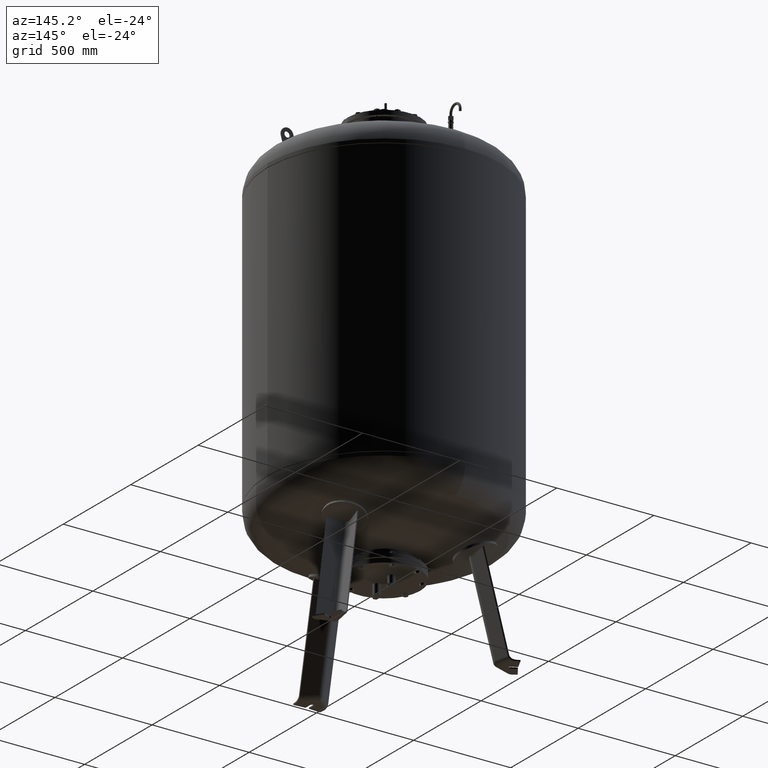
[diagram: clean part render]
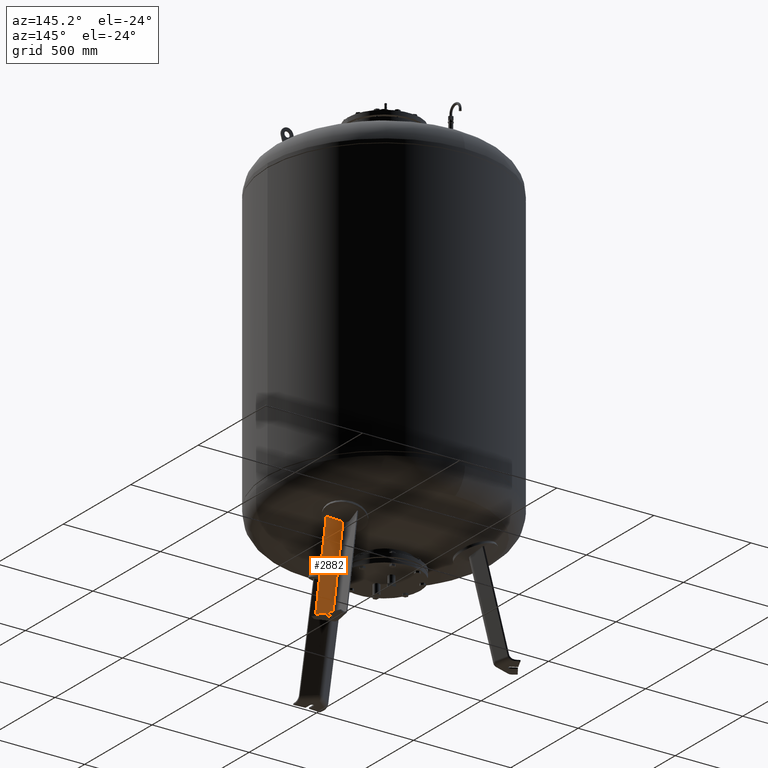
[diagram: same view with one face highlighted and labeled with its STEP entity id]
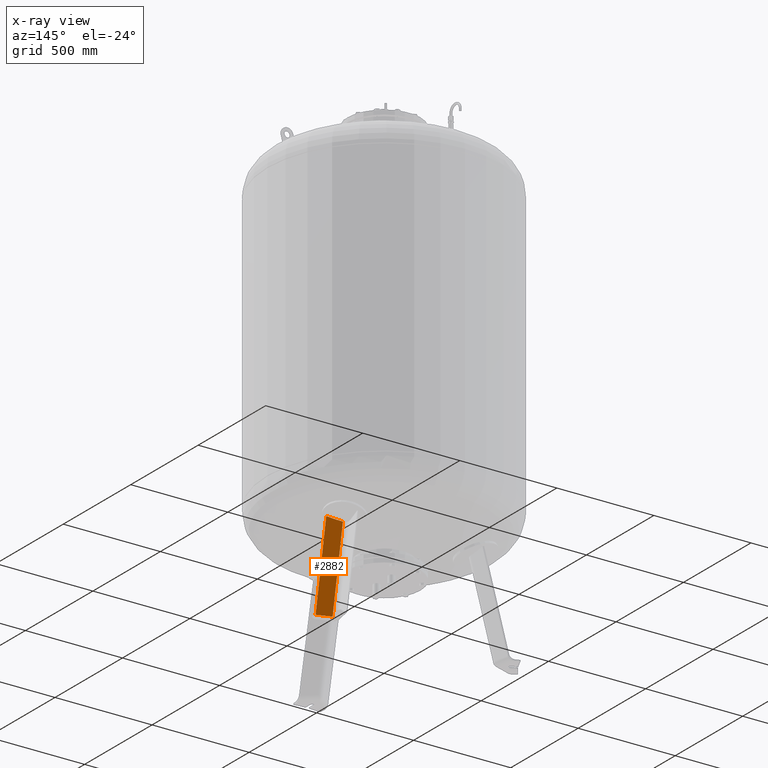
[diagram: x-ray of the same camera — body ghosted, the highlighted face saturated]
A machine part, auxiliary view. The second image highlights one B-rep face of the part: STEP entity #2882.
The next image is the same camera in x-ray: the body ghosted, the highlighted face saturated — about 0% of this face is hidden behind the body in this view.
In plain terms, the highlighted planar face has unit normal (0.3243, 0.9325, 0.1588).
Its self-contained STEP definition (entity closure, byte-faithful):
#2133=CARTESIAN_POINT('',(420.404321888330510,224.087779953756750,27.029948423057292));
#2134=VERTEX_POINT('',#2133);
#2466=CARTESIAN_POINT('',(491.178961512120450,199.476382368576000,27.029948423057292));
#2467=VERTEX_POINT('',#2466);
#2468=CARTESIAN_POINT('',(420.404321888330510,224.087779953756750,27.029948423057292));
#2469=DIRECTION('',(0.944521094592692,-0.328450760190053,0.0));
#2470=VECTOR('',#2469,74.931772333057609);
#2471=LINE('',#2468,#2470);
#2472=EDGE_CURVE('',#2134,#2467,#2471,.T.);
#2753=CARTESIAN_POINT('',(399.175549853899550,146.358187881338320,526.832862714638170));
#2754=VERTEX_POINT('',#2753);
#2762=CARTESIAN_POINT('',(331.807740852981510,172.936520043717650,508.325463444113210));
#2763=VERTEX_POINT('',#2762);
#2764=CARTESIAN_POINT('',(77.302037434044678,96.634406388363715,1476.110567297756700));
#2765=DIRECTION('',(-0.324282864533178,-0.932535537409926,-0.158802063077709));
#2766=DIRECTION('',(-0.180056805991956,-0.103955845408880,0.978147600733806));
#2767=AXIS2_PLACEMENT_3D('',#2764,#2765,#2766);
#2768=CIRCLE('',#2767,1003.595123972834800);
#2769=EDGE_CURVE('',#2763,#2754,#2768,.T.);
#2861=CARTESIAN_POINT('',(409.201208147898460,236.252427676909150,-21.527282742766886));
#2862=DIRECTION('',(0.324282864533177,0.932535537409926,0.158802063077708));
#2863=DIRECTION('',(-0.180056805991956,-0.103955845408880,0.978147600733806));
#2864=AXIS2_PLACEMENT_3D('',#2861,#2862,#2863);
#2865=PLANE('',#2864);
#2866=ORIENTED_EDGE('',*,*,#2769,.T.);
#2867=CARTESIAN_POINT('',(491.178961512120450,199.476382368576000,27.029948423057292));
#2868=DIRECTION('',(-0.180056805991956,-0.103955845408880,0.978147600733806));
#2869=VECTOR('',#2868,510.968808712130060);
#2870=LINE('',#2867,#2869);
#2871=EDGE_CURVE('',#2467,#2754,#2870,.T.);
#2872=ORIENTED_EDGE('',*,*,#2871,.F.);
#2873=ORIENTED_EDGE('',*,*,#2472,.F.);
#2874=CARTESIAN_POINT('',(331.807740852981510,172.936520043717650,508.325463444113210));
#2875=DIRECTION('',(0.180056805991956,0.103955845408880,-0.978147600733806));
#2876=VECTOR('',#2875,492.047943132496980);
#2877=LINE('',#2874,#2876);
#2878=EDGE_CURVE('',#2763,#2134,#2877,.T.);
#2879=ORIENTED_EDGE('',*,*,#2878,.F.);
#2880=EDGE_LOOP('',(#2866,#2872,#2873,#2879));
#2881=FACE_OUTER_BOUND('',#2880,.T.);
#2882=ADVANCED_FACE('',(#2881),#2865,.T.);